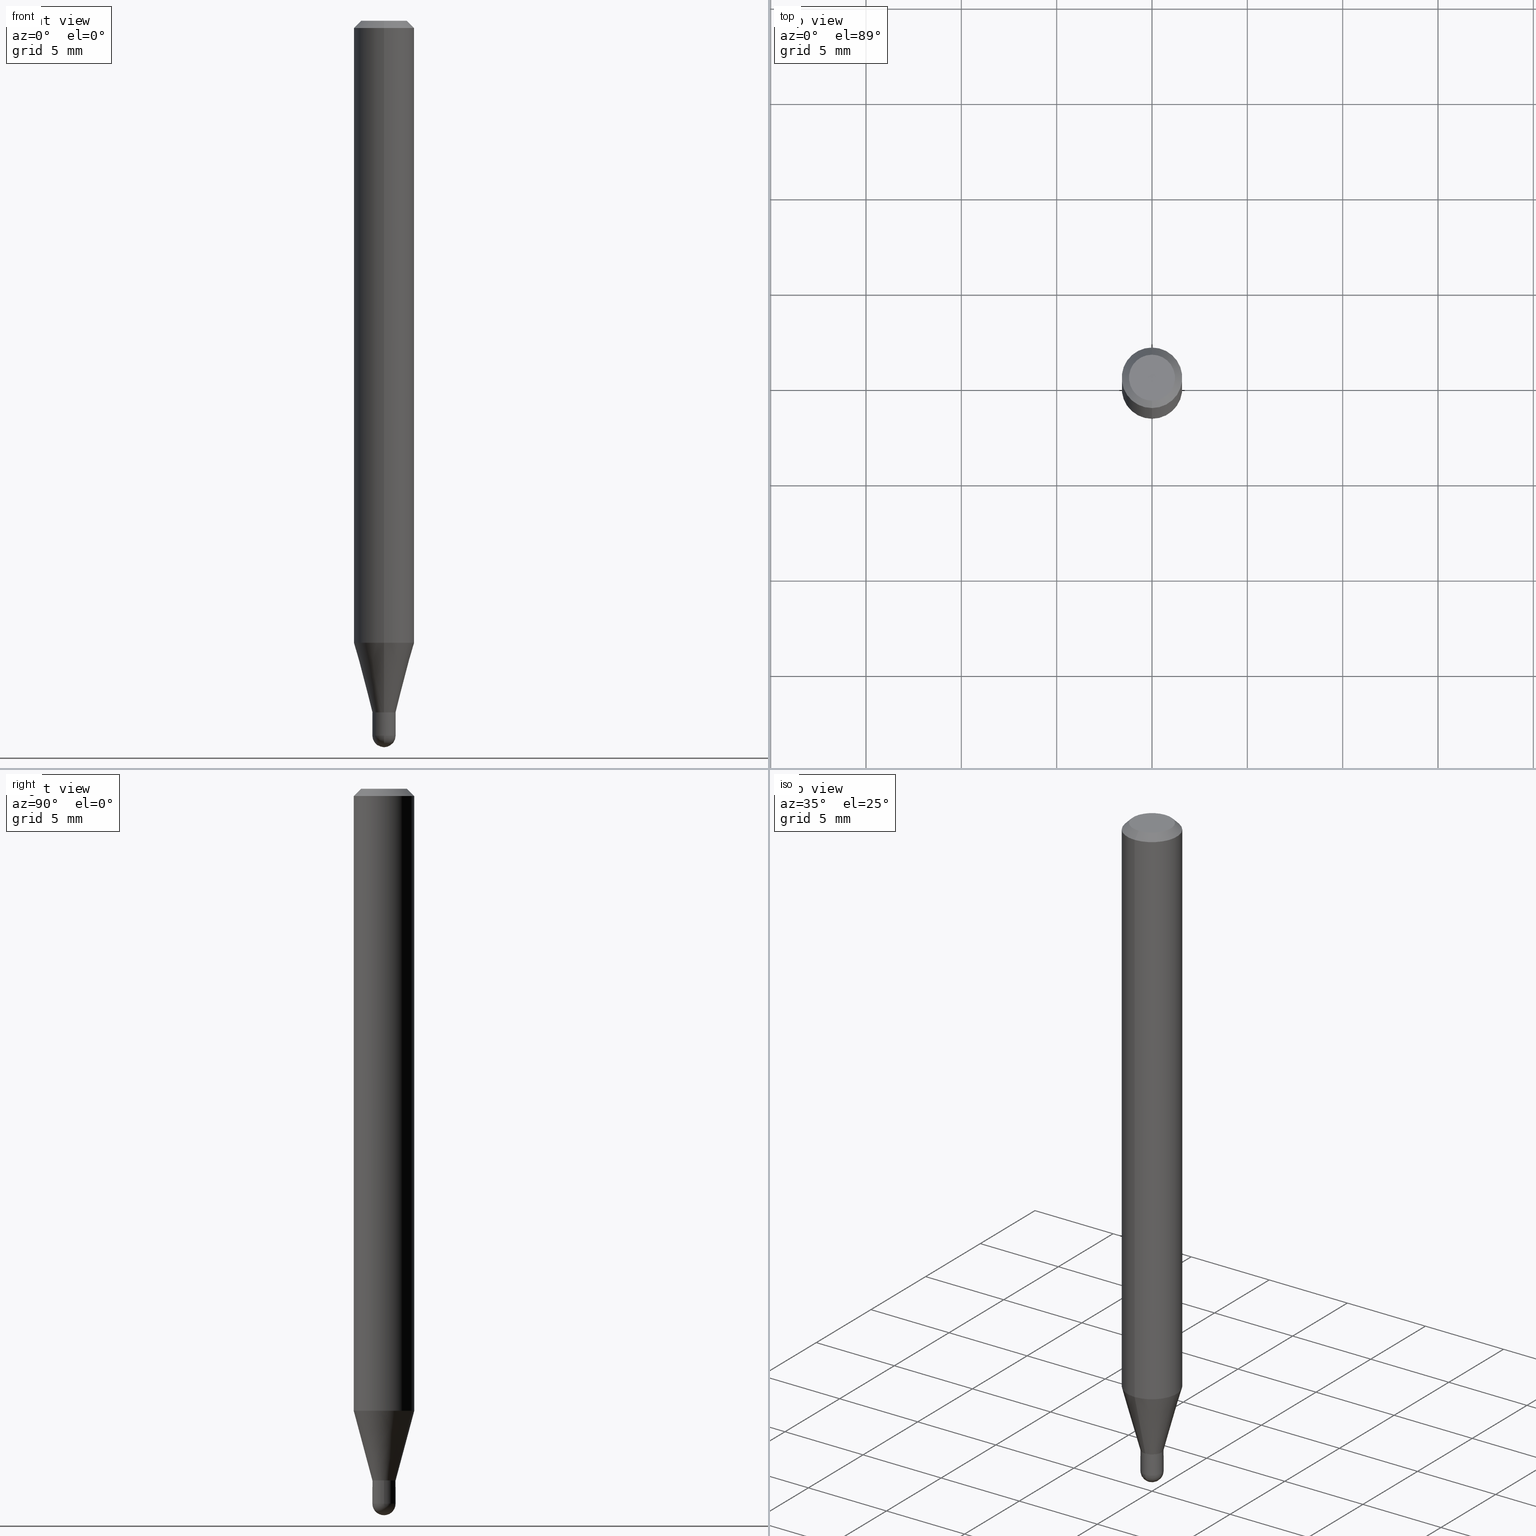
[diagram: canonical four-view strip — front | top / right | iso, engineering-drawing reading convention]
A machine part, canonical four-view strip (front | top / right | iso — engineering-drawing reading convention). The complete STEP part file that produces these views, byte-faithful:
ISO-10303-21;
HEADER;
FILE_DESCRIPTION (( 'STEP AP203' ),
    '1' );
FILE_NAME ('04360.STEP',
    '2024-03-08T18:52:19',
    ( '' ),
    ( '' ),
    'SwSTEP 2.0',
    'SolidWorks 2023',
    '' );
FILE_SCHEMA (( 'CONFIG_CONTROL_DESIGN' ));
ENDSEC;

DATA;
#1 = CARTESIAN_POINT ( 'NONE',  ( 3.490919734568844214E-29, -4.984070974782843525E-15, -1.427500000000000213 ) ) ;
#2 = CIRCLE ( 'NONE', #293, 0.06250000000000000000 ) ;
#3 = AXIS2_PLACEMENT_3D ( 'NONE', #206, #324, #477 ) ;
#4 = ORIENTED_EDGE ( 'NONE', *, *, #61, .T. ) ;
#5 = DIRECTION ( 'NONE',  ( -2.445477922640170503E-29, 3.491468283560659998E-15, 1.000000000000000000 ) ) ;
#6 = LINE ( 'NONE', #13, #456 ) ;
#7 = EDGE_CURVE ( 'NONE', #127, #265, #6, .T. ) ;
#8 = CARTESIAN_POINT ( 'NONE',  ( -4.364351673553916201E-16, -0.06250000000000000000, 2.182167677225412499E-16 ) ) ;
#9 = EDGE_LOOP ( 'NONE', ( #442, #286, #478, #216 ) ) ;
#10 = PERSON_AND_ORGANIZATION ( #240, #394 ) ;
#11 = PLANE ( 'NONE',  #294 ) ;
#12 = AXIS2_PLACEMENT_3D ( 'NONE', #448, #250, #371 ) ;
#13 = CARTESIAN_POINT ( 'NONE',  ( 4.364351673553919652E-16, 0.06249999999999995143, -0.01500000000000028394 ) ) ;
#14 = AXIS2_PLACEMENT_3D ( 'NONE', #172, #183, #302 ) ;
#15 = VECTOR ( 'NONE', #5, 39.37007874015748143 ) ;
#16 =( CONVERSION_BASED_UNIT ( 'INCH', #370 ) LENGTH_UNIT ( ) NAMED_UNIT ( #268 ) );
#17 = DIRECTION ( 'NONE',  ( -2.445477922640170783E-29, 3.491468283560660393E-15, 1.000000000000000000 ) ) ;
#18 = ADVANCED_FACE ( 'NONE', ( #131 ), #245, .T. ) ;
#19 = LINE ( 'NONE', #289, #350 ) ;
#20 = DIRECTION ( 'NONE',  ( -2.445477922640170503E-29, 3.491468283560659998E-15, 1.000000000000000000 ) ) ;
#21 = AXIS2_PLACEMENT_3D ( 'NONE', #348, #72, #38 ) ;
#22 = CIRCLE ( 'NONE', #413, 0.02400000000000003866 ) ;
#23 = SECURITY_CLASSIFICATION_LEVEL ( 'unclassified' ) ;
#24 = MANIFOLD_SOLID_BREP ( 'Body-Move/Copy2[1]', #119 ) ;
#25 = CARTESIAN_POINT ( 'NONE',  ( 1.669775429036583772E-16, 0.02349999999999500752, -1.428000000000000380 ) ) ;
#26 = EDGE_CURVE ( 'NONE', #481, #485, #19, .T. ) ;
#27 = DIRECTION ( 'NONE',  ( -6.982962677686265922E-15, -1.000000000000000000, 0.000000000000000000 ) ) ;
#28 = DIRECTION ( 'NONE',  ( -6.982962677686265922E-15, -1.000000000000000000, 3.483106191921935554E-15 ) ) ;
#29 = AXIS2_PLACEMENT_3D ( 'NONE', #258, #414, #55 ) ;
#30 = AXIS2_PLACEMENT_3D ( 'NONE', #472, #396, #195 ) ;
#31 = DIRECTION ( 'NONE',  ( -2.445477922640170783E-29, 3.491468283560660393E-15, 1.000000000000000000 ) ) ;
#32 = PLANE ( 'NONE',  #89 ) ;
#33 = ORIENTED_EDGE ( 'NONE', *, *, #86, .F. ) ;
#34 = CARTESIAN_POINT ( 'NONE',  ( -1.675911042644368064E-16, -0.02400000000000517691, -1.428000000000000158 ) ) ;
#35 = VERTEX_POINT ( 'NONE', #179 ) ;
#36 = AXIS2_PLACEMENT_3D ( 'NONE', #80, #353, #269 ) ;
#37 = CC_DESIGN_APPROVAL ( #424, ( #331 ) ) ;
#38 = DIRECTION ( 'NONE',  ( -6.982962677686265922E-15, -1.000000000000000000, 0.000000000000000000 ) ) ;
#39 = EDGE_LOOP ( 'NONE', ( #247, #83, #193, #200, #92 ) ) ;
#40 = ADVANCED_FACE ( 'NONE', ( #334 ), #128, .T. ) ;
#41 = FACE_OUTER_BOUND ( 'NONE', #397, .T. ) ;
#42 = ORIENTED_EDGE ( 'NONE', *, *, #399, .T. ) ;
#43 = CARTESIAN_POINT ( 'NONE',  ( 1.705302565824602125E-16, 0.02399999999999486572, -1.475999999999999979 ) ) ;
#44 = ORIENTED_EDGE ( 'NONE', *, *, #266, .T. ) ;
#45 = APPLICATION_PROTOCOL_DEFINITION ( 'international standard', 'config_control_design', 1994, #87 ) ;
#46 = CARTESIAN_POINT ( 'NONE',  ( 1.705302565824602865E-16, 0.02399999999999520572, -1.428000000000000158 ) ) ;
#47 = CARTESIAN_POINT ( 'NONE',  ( 0.000000000000000000, 0.000000000000000000, 0.000000000000000000 ) ) ;
#48 = VERTEX_POINT ( 'NONE', #252 ) ;
#49 = LINE ( 'NONE', #8, #15 ) ;
#50 = CARTESIAN_POINT ( 'NONE',  ( 3.609511957929261635E-29, -5.153426456132482850E-15, -1.475999999999999979 ) ) ;
#51 = EDGE_CURVE ( 'NONE', #235, #113, #155, .T. ) ;
#52 = FACE_OUTER_BOUND ( 'NONE', #474, .T. ) ;
#53 = DIRECTION ( 'NONE',  ( -2.445477922640170503E-29, 3.491468283560659998E-15, 1.000000000000000000 ) ) ;
#54 = CONICAL_SURFACE ( 'NONE', #301, 0.02349999999999999312, 0.7853981633969318032 ) ;
#55 = DIRECTION ( 'NONE',  ( -6.982962677686265922E-15, -1.000000000000000000, 4.370956789862821150E-15 ) ) ;
#56 = CYLINDRICAL_SURFACE ( 'NONE', #121, 0.02399999999999991723 ) ;
#57 = UNCERTAINTY_MEASURE_WITH_UNIT (LENGTH_MEASURE( 1.000000000000000082E-05 ), #16, 'distance_accuracy_value', 'NONE');
#58 = APPROVAL_DATE_TIME ( #187, #404 ) ;
#59 = DIRECTION ( 'NONE',  ( -2.445468806185136597E-29, 3.491481338843145583E-15, 1.000000000000000000 ) ) ;
#60 = VECTOR ( 'NONE', #462, 39.37007874015748143 ) ;
#61 = EDGE_CURVE ( 'NONE', #127, #406, #411, .T. ) ;
#62 = SHAPE_DEFINITION_REPRESENTATION ( #383, #85 ) ;
#63 = DIRECTION ( 'NONE',  ( 1.000000000000000000, -6.982962677686250144E-15, 0.000000000000000000 ) ) ;
#64 = PERSON_AND_ORGANIZATION_ROLE ( 'design_supplier' ) ;
#65 = CARTESIAN_POINT ( 'NONE',  ( -1.675911042644344398E-16, -0.02400000000000517691, -1.475999999999999979 ) ) ;
#66 = ADVANCED_FACE ( 'NONE', ( #215 ), #292, .T. ) ;
#67 = CARTESIAN_POINT ( 'NONE',  ( 4.440892098500625669E-16, 0.06250000000000000000, -2.182167677225412499E-16 ) ) ;
#68 = EDGE_LOOP ( 'NONE', ( #270, #476, #489, #33 ) ) ;
#69 = VECTOR ( 'NONE', #149, 39.37007874015748143 ) ;
#70 = LOCAL_TIME ( 13, 52, 19.00000000000000000, #504 ) ;
#71 = CYLINDRICAL_SURFACE ( 'NONE', #122, 0.06250000000000000000 ) ;
#72 = DIRECTION ( 'NONE',  ( -2.445477922640170783E-29, 3.491468283560660393E-15, 1.000000000000000000 ) ) ;
#73 = ORIENTED_EDGE ( 'NONE', *, *, #452, .T. ) ;
#74 = SPHERICAL_SURFACE ( 'NONE', #36, 0.02400000000000003866 ) ;
#75 = ORIENTED_EDGE ( 'NONE', *, *, #391, .F. ) ;
#76 = EDGE_CURVE ( 'NONE', #403, #443, #189, .T. ) ;
#77 = APPROVAL_DATE_TIME ( #322, #424 ) ;
#78 = AXIS2_PLACEMENT_3D ( 'NONE', #191, #379, #27 ) ;
#79 = AXIS2_PLACEMENT_3D ( 'NONE', #130, #211, #362 ) ;
#80 = CARTESIAN_POINT ( 'NONE',  ( 3.607459558835231439E-29, -5.156365608450436393E-15, -1.475999999999999979 ) ) ;
#81 = ORIENTED_EDGE ( 'NONE', *, *, #262, .F. ) ;
#82 = CARTESIAN_POINT ( 'NONE',  ( 3.609511957929261635E-29, -5.153426456132482850E-15, -1.475999999999999979 ) ) ;
#83 = ORIENTED_EDGE ( 'NONE', *, *, #185, .T. ) ;
#84 = APPLICATION_PROTOCOL_DEFINITION ( 'international standard', 'config_control_design', 1994, #228 ) ;
#85 = ADVANCED_BREP_SHAPE_REPRESENTATION ( '04360', ( #24, #364, #505 ), #310 ) ;
#86 = EDGE_CURVE ( 'NONE', #265, #317, #318, .T. ) ;
#87 = APPLICATION_CONTEXT ( 'configuration controlled 3d designs of mechanical parts and assemblies' ) ;
#88 = ORIENTED_EDGE ( 'NONE', *, *, #381, .T. ) ;
#89 = AXIS2_PLACEMENT_3D ( 'NONE', #232, #238, #465 ) ;
#90 = DIRECTION ( 'NONE',  ( -2.445477922640170783E-29, 3.491468283560660393E-15, 1.000000000000000000 ) ) ;
#91 = CIRCLE ( 'NONE', #79, 0.02400000000000019132 ) ;
#92 = ORIENTED_EDGE ( 'NONE', *, *, #299, .F. ) ;
#93 = DIRECTION ( 'NONE',  ( -1.000000000000000000, 6.982962677686265922E-15, -4.876176775795935793E-29 ) ) ;
#94 = CARTESIAN_POINT ( 'NONE',  ( 3.668216883960272272E-31, -5.237202425341013244E-17, -0.01500000000000006710 ) ) ;
#95 = EDGE_CURVE ( 'NONE', #48, #443, #100, .T. ) ;
#96 = LINE ( 'NONE', #132, #420 ) ;
#97 = ORIENTED_EDGE ( 'NONE', *, *, #480, .F. ) ;
#98 = AXIS2_PLACEMENT_3D ( 'NONE', #137, #295, #453 ) ;
#99 = DIRECTION ( 'NONE',  ( -2.445468806185136597E-29, 3.491481338843145583E-15, 1.000000000000000000 ) ) ;
#100 = LINE ( 'NONE', #46, #229 ) ;
#101 = CARTESIAN_POINT ( 'NONE',  ( 1.687538997430571255E-16, 0.02349999999999500752, -1.428000000000000380 ) ) ;
#102 = ADVANCED_FACE ( 'NONE', ( #363 ), #213, .T. ) ;
#103 = COORDINATED_UNIVERSAL_TIME_OFFSET ( 5, 0, .BEHIND. ) ;
#104 = CYLINDRICAL_SURFACE ( 'NONE', #230, 0.02400000000000000397 ) ;
#105 = DIRECTION ( 'NONE',  ( -6.982962677686266711E-15, -1.000000000000000000, 3.491468283560660393E-15 ) ) ;
#106 = APPROVAL_STATUS ( 'not_yet_approved' ) ;
#107 = ADVANCED_FACE ( 'NONE', ( #110 ), #236, .T. ) ;
#108 = LINE ( 'NONE', #67, #384 ) ;
#109 = APPROVAL_DATE_TIME ( #461, #251 ) ;
#110 = FACE_OUTER_BOUND ( 'NONE', #325, .T. ) ;
#111 = AXIS2_PLACEMENT_3D ( 'NONE', #114, #231, #153 ) ;
#112 = DIRECTION ( 'NONE',  ( -2.445468806185136597E-29, 3.491481338843145583E-15, 1.000000000000000000 ) ) ;
#113 = VERTEX_POINT ( 'NONE', #454 ) ;
#114 = CARTESIAN_POINT ( 'NONE',  ( 3.492129455232375114E-29, -4.985835351868012196E-15, -1.428000000000000158 ) ) ;
#115 = ORIENTED_EDGE ( 'NONE', *, *, #147, .T. ) ;
#116 = PERSON_AND_ORGANIZATION ( #240, #394 ) ;
#117 = DIRECTION ( 'NONE',  ( -6.982962677686265133E-15, -1.000000000000000000, 0.000000000000000000 ) ) ;
#118 = ORIENTED_EDGE ( 'NONE', *, *, #76, .T. ) ;
#119 = CLOSED_SHELL ( 'NONE', ( #176, #291, #440, #194, #66 ) ) ;
#120 = CALENDAR_DATE ( 2024, 8, 3 ) ;
#121 = AXIS2_PLACEMENT_3D ( 'NONE', #217, #145, #105 ) ;
#122 = AXIS2_PLACEMENT_3D ( 'NONE', #387, #90, #288 ) ;
#123 = CARTESIAN_POINT ( 'NONE',  ( -4.364351673553604601E-16, -0.06250000000000449640, -1.284316043908603877 ) ) ;
#124 = ORIENTED_EDGE ( 'NONE', *, *, #225, .F. ) ;
#125 = EDGE_CURVE ( 'NONE', #317, #265, #2, .T. ) ;
#126 = ORIENTED_EDGE ( 'NONE', *, *, #86, .T. ) ;
#127 = VERTEX_POINT ( 'NONE', #458 ) ;
#128 = CONICAL_SURFACE ( 'NONE', #12, 0.06250000000000000000, 0.7853981633974483900 ) ;
#129 = CIRCLE ( 'NONE', #419, 0.02400000000000003866 ) ;
#130 = CARTESIAN_POINT ( 'NONE',  ( 3.492142473530164178E-29, -4.985816708924623265E-15, -1.428000000000000158 ) ) ;
#131 = FACE_OUTER_BOUND ( 'NONE', #9, .T. ) ;
#132 = CARTESIAN_POINT ( 'NONE',  ( 1.705302565824234319E-16, 0.02399999999999991723, -8.379523880545556110E-17 ) ) ;
#133 = ORIENTED_EDGE ( 'NONE', *, *, #95, .T. ) ;
#134 = EDGE_CURVE ( 'NONE', #154, #35, #227, .T. ) ;
#135 = DIRECTION ( 'NONE',  ( -2.445477922640170503E-29, 3.491468283560659998E-15, 1.000000000000000000 ) ) ;
#136 = DIRECTION ( 'NONE',  ( 2.445477922640170783E-29, -3.491468283560660393E-15, -1.000000000000000000 ) ) ;
#137 = CARTESIAN_POINT ( 'NONE',  ( 3.668216883960272272E-31, -5.237202425341013244E-17, -0.01500000000000006710 ) ) ;
#138 = VECTOR ( 'NONE', #475, 39.37007874015748143 ) ;
#139 = CC_DESIGN_APPROVAL ( #404, ( #457 ) ) ;
#140 = EDGE_CURVE ( 'NONE', #359, #235, #129, .T. ) ;
#141 = CARTESIAN_POINT ( 'NONE',  ( 3.668216883960272272E-31, -5.237202425341013244E-17, -0.01500000000000006710 ) ) ;
#142 = EDGE_LOOP ( 'NONE', ( #233, #42, #431, #239 ) ) ;
#143 = COORDINATED_UNIVERSAL_TIME_OFFSET ( 5, 0, .BEHIND. ) ;
#144 = CARTESIAN_POINT ( 'NONE',  ( 3.316907271900976096E-16, 0.04749999999999999362, -1.985951705582884930E-16 ) ) ;
#145 = DIRECTION ( 'NONE',  ( -2.445477922640170783E-29, 3.491468283560660393E-15, 1.000000000000000000 ) ) ;
#146 = CONICAL_SURFACE ( 'NONE', #482, 0.02400000000000019132, 0.2617993877991580676 ) ;
#147 = EDGE_CURVE ( 'NONE', #443, #265, #108, .T. ) ;
#148 = LOCAL_TIME ( 13, 52, 19.00000000000000000, #493 ) ;
#149 = DIRECTION ( 'NONE',  ( -2.445468806185136877E-29, 3.491481338843145188E-15, 1.000000000000000000 ) ) ;
#150 = PRODUCT_RELATED_PRODUCT_CATEGORY ( 'detail', '', ( #429 ) ) ;
#151 = PERSON_AND_ORGANIZATION ( #240, #394 ) ;
#152 = DIRECTION ( 'NONE',  ( -6.982962677686265922E-15, -1.000000000000000000, 0.000000000000000000 ) ) ;
#153 = DIRECTION ( 'NONE',  ( 1.000000000000000000, -6.982962677686251722E-15, 0.000000000000000000 ) ) ;
#154 = VERTEX_POINT ( 'NONE', #101 ) ;
#155 = CIRCLE ( 'NONE', #360, 0.02400000000000000397 ) ;
#156 = VECTOR ( 'NONE', #373, 39.37007874015748143 ) ;
#157 = LOCAL_TIME ( 13, 52, 19.00000000000000000, #510 ) ;
#158 = CALENDAR_DATE ( 2024, 8, 3 ) ;
#159 = ADVANCED_FACE ( 'NONE', ( #307 ), #296, .F. ) ;
#160 = LINE ( 'NONE', #34, #138 ) ;
#161 = VERTEX_POINT ( 'NONE', #259 ) ;
#162 = DIRECTION ( 'NONE',  ( -2.445477922640170783E-29, 3.491468283560660393E-15, 1.000000000000000000 ) ) ;
#163 = ORIENTED_EDGE ( 'NONE', *, *, #399, .F. ) ;
#164 = FACE_OUTER_BOUND ( 'NONE', #142, .T. ) ;
#165 = ORIENTED_EDGE ( 'NONE', *, *, #381, .F. ) ;
#166 = EDGE_CURVE ( 'NONE', #406, #317, #298, .T. ) ;
#167 = AXIS2_PLACEMENT_3D ( 'NONE', #415, #377, #63 ) ;
#168 = DIRECTION ( 'NONE',  ( -2.445477922640170783E-29, 3.491468283560660393E-15, 1.000000000000000000 ) ) ;
#169 = EDGE_LOOP ( 'NONE', ( #88, #390, #97, #444, #507 ) ) ;
#170 = MECHANICAL_CONTEXT ( 'NONE', #87, 'mechanical' ) ;
#171 = CARTESIAN_POINT ( 'NONE',  ( -1.640996229255922955E-16, -0.02350000000000497871, -1.428000000000000380 ) ) ;
#172 = CARTESIAN_POINT ( 'NONE',  ( 3.492142473530164178E-29, -4.985816708924623265E-15, -1.428000000000000158 ) ) ;
#173 = DIRECTION ( 'NONE',  ( 0.000000000000000000, 0.000000000000000000, 1.000000000000000000 ) ) ;
#174 = ORIENTED_EDGE ( 'NONE', *, *, #262, .T. ) ;
#175 = CARTESIAN_POINT ( 'NONE',  ( 4.440892098500937762E-16, 0.06249999999999550360, -1.284316043908604321 ) ) ;
#176 = ADVANCED_FACE ( 'NONE', ( #455 ), #104, .T. ) ;
#177 = DIRECTION ( 'NONE',  ( 1.000000000000000000, -6.982962677686250144E-15, 0.000000000000000000 ) ) ;
#178 = ORIENTED_EDGE ( 'NONE', *, *, #452, .F. ) ;
#179 = CARTESIAN_POINT ( 'NONE',  ( 1.705302565824558245E-16, 0.02399999999999458122, -1.427500000000000213 ) ) ;
#180 = ADVANCED_FACE ( 'NONE', ( #261 ), #54, .T. ) ;
#181 = AXIS2_PLACEMENT_3D ( 'NONE', #144, #182, #342 ) ;
#182 = DIRECTION ( 'NONE',  ( 2.445477922640170503E-29, -3.491468283560659998E-15, -1.000000000000000000 ) ) ;
#183 = DIRECTION ( 'NONE',  ( -2.445477922640170783E-29, 3.491468283560660393E-15, 1.000000000000000000 ) ) ;
#184 = APPROVAL_ROLE ( '' ) ;
#185 = EDGE_CURVE ( 'NONE', #492, #235, #277, .T. ) ;
#186 = CARTESIAN_POINT ( 'NONE',  ( 3.492142473530164738E-29, -4.985816708924624054E-15, -1.428000000000000380 ) ) ;
#187 = DATE_AND_TIME ( #218, #222 ) ;
#188 = CARTESIAN_POINT ( 'NONE',  ( -0.02400000000000000397, 1.705302565824240728E-16, -1.180544421661177751E-30 ) ) ;
#189 = CIRCLE ( 'NONE', #29, 0.06250000000000000000 ) ;
#190 = PERSON_AND_ORGANIZATION_ROLE ( 'classification_officer' ) ;
#191 = CARTESIAN_POINT ( 'NONE',  ( 3.607459558835231439E-29, -5.156365608450436393E-15, -1.475999999999999979 ) ) ;
#192 = DIRECTION ( 'NONE',  ( 1.000000000000000000, -6.982962677686250144E-15, 0.000000000000000000 ) ) ;
#193 = ORIENTED_EDGE ( 'NONE', *, *, #51, .T. ) ;
#194 = ADVANCED_FACE ( 'NONE', ( #347 ), #500, .T. ) ;
#195 = DIRECTION ( 'NONE',  ( -6.982962677686266711E-15, -1.000000000000000000, 3.491468283560660787E-15 ) ) ;
#196 = ORIENTED_EDGE ( 'NONE', *, *, #134, .T. ) ;
#197 = AXIS2_PLACEMENT_3D ( 'NONE', #460, #112, #192 ) ;
#198 = CIRCLE ( 'NONE', #3, 0.02399999999999965009 ) ;
#199 = DIRECTION ( 'NONE',  ( -2.445477922640170783E-29, 3.491468283560660393E-15, 1.000000000000000000 ) ) ;
#200 = ORIENTED_EDGE ( 'NONE', *, *, #248, .T. ) ;
#201 = CARTESIAN_POINT ( 'NONE',  ( 3.492142473530164738E-29, -4.985816708924624054E-15, -1.428000000000000380 ) ) ;
#202 = ADVANCED_FACE ( 'NONE', ( #223 ), #56, .F. ) ;
#203 = ORIENTED_EDGE ( 'NONE', *, *, #134, .F. ) ;
#204 = CYLINDRICAL_SURFACE ( 'NONE', #278, 0.02399999999999991723 ) ;
#205 = ORIENTED_EDGE ( 'NONE', *, *, #185, .F. ) ;
#206 = CARTESIAN_POINT ( 'NONE',  ( 3.490919734568844214E-29, -4.984070974782843525E-15, -1.427500000000000213 ) ) ;
#207 = DIRECTION ( 'NONE',  ( 1.839019923739653958E-15, 0.2588190451025325078, 0.9659258262890650926 ) ) ;
#208 =( NAMED_UNIT ( * ) PLANE_ANGLE_UNIT ( ) SI_UNIT ( $, .RADIAN. ) );
#209 = ORIENTED_EDGE ( 'NONE', *, *, #323, .F. ) ;
#210 = CC_DESIGN_PERSON_AND_ORGANIZATION_ASSIGNMENT ( #116, #392, ( #429 ) ) ;
#211 = DIRECTION ( 'NONE',  ( -2.445477922640170783E-29, 3.491468283560660393E-15, 1.000000000000000000 ) ) ;
#212 = DIRECTION ( 'NONE',  ( -2.445468806185136597E-29, 3.491481338843145583E-15, 1.000000000000000000 ) ) ;
#213 = CONICAL_SURFACE ( 'NONE', #14, 0.02400000000000019132, 0.2617993877991580676 ) ;
#214 = CIRCLE ( 'NONE', #483, 0.02400000000000000050 ) ;
#215 = FACE_OUTER_BOUND ( 'NONE', #39, .T. ) ;
#216 = ORIENTED_EDGE ( 'NONE', *, *, #7, .F. ) ;
#217 = CARTESIAN_POINT ( 'NONE',  ( 0.000000000000000000, 0.000000000000000000, 0.000000000000000000 ) ) ;
#218 = CALENDAR_DATE ( 2024, 8, 3 ) ;
#219 = AXIS2_PLACEMENT_3D ( 'NONE', #94, #136, #368 ) ;
#220 = CIRCLE ( 'NONE', #328, 0.02399999999999965009 ) ;
#221 = DIRECTION ( 'NONE',  ( 1.000000000000000000, -6.982962677686266711E-15, 4.876176775795935232E-29 ) ) ;
#222 = LOCAL_TIME ( 13, 52, 19.00000000000000000, #143 ) ;
#223 = FACE_OUTER_BOUND ( 'NONE', #244, .T. ) ;
#224 = CALENDAR_DATE ( 2024, 8, 3 ) ;
#225 = EDGE_CURVE ( 'NONE', #443, #403, #319, .T. ) ;
#226 = LINE ( 'NONE', #188, #393 ) ;
#227 = LINE ( 'NONE', #25, #156 ) ;
#228 = APPLICATION_CONTEXT ( 'configuration controlled 3d designs of mechanical parts and assemblies' ) ;
#229 = VECTOR ( 'NONE', #207, 39.37007874015748143 ) ;
#230 = AXIS2_PLACEMENT_3D ( 'NONE', #417, #59, #221 ) ;
#231 = DIRECTION ( 'NONE',  ( -2.445468806185136597E-29, 3.491481338843145583E-15, 1.000000000000000000 ) ) ;
#232 = CARTESIAN_POINT ( 'NONE',  ( 3.492142473530164178E-29, -4.985816708924623265E-15, -1.428000000000000158 ) ) ;
#233 = ORIENTED_EDGE ( 'NONE', *, *, #140, .F. ) ;
#234 = DIRECTION ( 'NONE',  ( -2.445477922640170783E-29, 3.491468283560660393E-15, 1.000000000000000000 ) ) ;
#235 = VERTEX_POINT ( 'NONE', #65 ) ;
#236 = CONICAL_SURFACE ( 'NONE', #463, 0.02349999999999999312, 0.7853981633969318032 ) ;
#237 = EDGE_CURVE ( 'NONE', #492, #352, #226, .T. ) ;
#238 = DIRECTION ( 'NONE',  ( -2.445477922640170503E-29, 3.491468283560659998E-15, 1.000000000000000000 ) ) ;
#239 = ORIENTED_EDGE ( 'NONE', *, *, #51, .F. ) ;
#240 = PERSON ( 'UNSPECIFIED', 'UNSPECIFIED', 'UNSPECIFIED', ('UNSPECIFIED'), ('UNSPECIFIED'), ('UNSPECIFIED') ) ;
#241 = CC_DESIGN_PERSON_AND_ORGANIZATION_ASSIGNMENT ( #260, #190, ( #303 ) ) ;
#242 = DIRECTION ( 'NONE',  ( -6.982962677686265922E-15, -1.000000000000000000, 0.000000000000000000 ) ) ;
#243 = ORIENTED_EDGE ( 'NONE', *, *, #76, .F. ) ;
#244 = EDGE_LOOP ( 'NONE', ( #209, #512, #273, #321 ) ) ;
#245 = CONICAL_SURFACE ( 'NONE', #219, 0.06250000000000000000, 0.7853981633974483900 ) ;
#246 = DIRECTION ( 'NONE',  ( 1.000000000000000000, -6.982962677686251722E-15, 0.000000000000000000 ) ) ;
#247 = ORIENTED_EDGE ( 'NONE', *, *, #237, .F. ) ;
#248 = EDGE_CURVE ( 'NONE', #113, #498, #344, .T. ) ;
#249 = LINE ( 'NONE', #171, #464 ) ;
#250 = DIRECTION ( 'NONE',  ( 2.445477922640170783E-29, -3.491468283560660393E-15, -1.000000000000000000 ) ) ;
#251 = APPROVAL ( #380, 'UNSPECIFIED' ) ;
#252 = CARTESIAN_POINT ( 'NONE',  ( 3.073097332162772285E-16, 0.02399999999999520572, -1.428000000000000158 ) ) ;
#253 = DATE_TIME_ROLE ( 'creation_date' ) ;
#254 = AXIS2_PLACEMENT_3D ( 'NONE', #451, #99, #257 ) ;
#255 = CIRCLE ( 'NONE', #111, 0.02400000000000000050 ) ;
#256 = EDGE_CURVE ( 'NONE', #113, #395, #412, .T. ) ;
#257 = DIRECTION ( 'NONE',  ( 1.000000000000000000, -6.982962677686266711E-15, 4.876176775795935232E-29 ) ) ;
#258 = CARTESIAN_POINT ( 'NONE',  ( 3.140766531071055068E-29, -4.484148733374991041E-15, -1.284316043908604099 ) ) ;
#259 = CARTESIAN_POINT ( 'NONE',  ( -1.640996229255922955E-16, -0.02350000000000497871, -1.428000000000000380 ) ) ;
#260 = PERSON_AND_ORGANIZATION ( #240, #394 ) ;
#261 = FACE_OUTER_BOUND ( 'NONE', #327, .T. ) ;
#262 = EDGE_CURVE ( 'NONE', #161, #154, #490, .T. ) ;
#263 = DIRECTION ( 'NONE',  ( -2.445477922640170783E-29, 3.491468283560660393E-15, 1.000000000000000000 ) ) ;
#264 = DIRECTION ( 'NONE',  ( -2.445468806185136877E-29, 3.491481338843145188E-15, 1.000000000000000000 ) ) ;
#265 = VERTEX_POINT ( 'NONE', #502 ) ;
#266 = EDGE_CURVE ( 'NONE', #154, #161, #361, .T. ) ;
#267 = DIRECTION ( 'NONE',  ( -6.982962677686266711E-15, -1.000000000000000000, 3.491468283560660393E-15 ) ) ;
#268 = DIMENSIONAL_EXPONENTS ( 1.000000000000000000, 0.000000000000000000, 0.000000000000000000, 0.000000000000000000, 0.000000000000000000, 0.000000000000000000, 0.000000000000000000 ) ;
#269 = DIRECTION ( 'NONE',  ( -6.982962677686265922E-15, -1.000000000000000000, 0.000000000000000000 ) ) ;
#270 = ORIENTED_EDGE ( 'NONE', *, *, #147, .F. ) ;
#271 = DESIGN_CONTEXT ( 'detailed design', #228, 'design' ) ;
#272 = CARTESIAN_POINT ( 'NONE',  ( 0.000000000000000000, 0.000000000000000000, 0.000000000000000000 ) ) ;
#273 = ORIENTED_EDGE ( 'NONE', *, *, #391, .T. ) ;
#274 = APPROVAL_ROLE ( '' ) ;
#275 = DIRECTION ( 'NONE',  ( -2.445477922640170783E-29, 3.491468283560660393E-15, 1.000000000000000000 ) ) ;
#276 = EDGE_LOOP ( 'NONE', ( #4, #281 ) ) ;
#277 = CIRCLE ( 'NONE', #167, 0.02400000000000000397 ) ;
#278 = AXIS2_PLACEMENT_3D ( 'NONE', #358, #168, #267 ) ;
#279 = PERSON_AND_ORGANIZATION_ROLE ( 'creator' ) ;
#280 = CARTESIAN_POINT ( 'NONE',  ( -3.773273898774340269E-16, -0.04749999999999999362, 1.003438892908170875E-16 ) ) ;
#281 = ORIENTED_EDGE ( 'NONE', *, *, #346, .T. ) ;
#282 =( NAMED_UNIT ( * ) SI_UNIT ( $, .STERADIAN. ) SOLID_ANGLE_UNIT ( ) );
#283 = EDGE_LOOP ( 'NONE', ( #163, #509, #205, #165 ) ) ;
#284 = PERSON_AND_ORGANIZATION ( #240, #394 ) ;
#285 = ADVANCED_FACE ( 'NONE', ( #356 ), #146, .T. ) ;
#286 = ORIENTED_EDGE ( 'NONE', *, *, #166, .T. ) ;
#287 = AXIS2_PLACEMENT_3D ( 'NONE', #82, #508, #398 ) ;
#288 = DIRECTION ( 'NONE',  ( -6.982962677686265922E-15, -1.000000000000000000, 3.491468283560659998E-15 ) ) ;
#289 = CARTESIAN_POINT ( 'NONE',  ( -1.675911042644698153E-16, -0.02399999999999991723, 8.379523880545556110E-17 ) ) ;
#290 = ORIENTED_EDGE ( 'NONE', *, *, #501, .F. ) ;
#291 = ADVANCED_FACE ( 'NONE', ( #164 ), #74, .T. ) ;
#292 = CYLINDRICAL_SURFACE ( 'NONE', #254, 0.02400000000000000397 ) ;
#293 = AXIS2_PLACEMENT_3D ( 'NONE', #141, #491, #28 ) ;
#294 = AXIS2_PLACEMENT_3D ( 'NONE', #365, #447, #93 ) ;
#295 = DIRECTION ( 'NONE',  ( -2.445477922640170783E-29, 3.491468283560660393E-15, 1.000000000000000000 ) ) ;
#296 = PLANE ( 'NONE',  #181 ) ;
#297 = PERSON_AND_ORGANIZATION ( #240, #394 ) ;
#298 = LINE ( 'NONE', #335, #60 ) ;
#299 = EDGE_CURVE ( 'NONE', #352, #498, #255, .T. ) ;
#300 = ORIENTED_EDGE ( 'NONE', *, *, #488, .F. ) ;
#301 = AXIS2_PLACEMENT_3D ( 'NONE', #421, #31, #495 ) ;
#302 = DIRECTION ( 'NONE',  ( -6.982962677686265922E-15, -1.000000000000000000, 0.000000000000000000 ) ) ;
#303 = SECURITY_CLASSIFICATION ( '', '', #23 ) ;
#304 = CC_DESIGN_PERSON_AND_ORGANIZATION_ASSIGNMENT ( #284, #279, ( #331 ) ) ;
#305 = DIRECTION ( 'NONE',  ( -2.445477922640170783E-29, 3.491468283560660393E-15, 1.000000000000000000 ) ) ;
#306 = ADVANCED_FACE ( 'NONE', ( #308 ), #32, .F. ) ;
#307 = FACE_OUTER_BOUND ( 'NONE', #276, .T. ) ;
#308 = FACE_OUTER_BOUND ( 'NONE', #357, .T. ) ;
#309 = AXIS2_PLACEMENT_3D ( 'NONE', #201, #275, #242 ) ;
#310 =( GEOMETRIC_REPRESENTATION_CONTEXT ( 3 ) GLOBAL_UNCERTAINTY_ASSIGNED_CONTEXT ( ( #57 ) ) GLOBAL_UNIT_ASSIGNED_CONTEXT ( ( #16, #208, #282 ) ) REPRESENTATION_CONTEXT ( 'NONE', 'WORKASPACE' ) );
#311 = ORIENTED_EDGE ( 'NONE', *, *, #7, .T. ) ;
#312 = DIRECTION ( 'NONE',  ( -6.982962677686265922E-15, -1.000000000000000000, 0.000000000000000000 ) ) ;
#313 = ORIENTED_EDGE ( 'NONE', *, *, #337, .F. ) ;
#314 = DIRECTION ( 'NONE',  ( -6.982962677686265922E-15, -1.000000000000000000, 0.000000000000000000 ) ) ;
#315 = EDGE_LOOP ( 'NONE', ( #400, #349, #311, #126 ) ) ;
#316 = DIRECTION ( 'NONE',  ( 7.105427357600999492E-15, 1.000000000000000000, 0.000000000000000000 ) ) ;
#317 = VERTEX_POINT ( 'NONE', #430 ) ;
#318 = CIRCLE ( 'NONE', #98, 0.06250000000000000000 ) ;
#319 = CIRCLE ( 'NONE', #343, 0.06250000000000000000 ) ;
#320 = CARTESIAN_POINT ( 'NONE',  ( 3.492142473530164178E-29, -4.985816708924623265E-15, -1.428000000000000158 ) ) ;
#321 = ORIENTED_EDGE ( 'NONE', *, *, #26, .F. ) ;
#322 = DATE_AND_TIME ( #120, #157 ) ;
#323 = EDGE_CURVE ( 'NONE', #48, #481, #445, .T. ) ;
#324 = DIRECTION ( 'NONE',  ( -2.445477922640170783E-29, 3.491468283560660393E-15, 1.000000000000000000 ) ) ;
#325 = EDGE_LOOP ( 'NONE', ( #174, #196, #438, #178 ) ) ;
#326 = CARTESIAN_POINT ( 'NONE',  ( -1.675911042644368064E-16, -0.02400000000000517691, -1.428000000000000158 ) ) ;
#327 = EDGE_LOOP ( 'NONE', ( #203, #44, #73, #75 ) ) ;
#328 = AXIS2_PLACEMENT_3D ( 'NONE', #1, #162, #117 ) ;
#329 = CARTESIAN_POINT ( 'NONE',  ( 3.492129455232375114E-29, -4.985835351868012196E-15, -1.428000000000000158 ) ) ;
#330 = EDGE_LOOP ( 'NONE', ( #466, #133, #243, #313 ) ) ;
#331 = PRODUCT_DEFINITION ( 'UNKNOWN', '', #457, #271 ) ;
#332 = CARTESIAN_POINT ( 'NONE',  ( 1.601808928071407067E-45, -2.286941549097159367E-31, -6.550085417831425799E-17 ) ) ;
#333 = CC_DESIGN_PERSON_AND_ORGANIZATION_ASSIGNMENT ( #378, #64, ( #457 ) ) ;
#334 = FACE_OUTER_BOUND ( 'NONE', #315, .T. ) ;
#335 = CARTESIAN_POINT ( 'NONE',  ( -4.287811248607203282E-16, -0.06250000000000005551, -0.01499999999999984852 ) ) ;
#336 = ORIENTED_EDGE ( 'NONE', *, *, #299, .T. ) ;
#337 = EDGE_CURVE ( 'NONE', #481, #403, #160, .T. ) ;
#338 = CARTESIAN_POINT ( 'NONE',  ( 3.607459558835231439E-29, -5.156365608450436393E-15, -1.475999999999999979 ) ) ;
#339 = ORIENTED_EDGE ( 'NONE', *, *, #95, .F. ) ;
#340 = PERSON_AND_ORGANIZATION_ROLE ( 'creator' ) ;
#341 = CC_DESIGN_PERSON_AND_ORGANIZATION_ASSIGNMENT ( #151, #340, ( #457 ) ) ;
#342 = DIRECTION ( 'NONE',  ( 6.982962677686265922E-15, 1.000000000000000000, -3.491468283560659998E-15 ) ) ;
#343 = AXIS2_PLACEMENT_3D ( 'NONE', #382, #263, #423 ) ;
#344 = LINE ( 'NONE', #497, #69 ) ;
#345 = APPROVAL_PERSON_ORGANIZATION ( #297, #251, #184 ) ;
#346 = EDGE_CURVE ( 'NONE', #406, #127, #473, .T. ) ;
#347 = FACE_OUTER_BOUND ( 'NONE', #283, .T. ) ;
#348 = CARTESIAN_POINT ( 'NONE',  ( 3.492142473530164738E-29, -4.985816708924624054E-15, -1.428000000000000380 ) ) ;
#349 = ORIENTED_EDGE ( 'NONE', *, *, #61, .F. ) ;
#350 = VECTOR ( 'NONE', #53, 39.37007874015748143 ) ;
#351 = CARTESIAN_POINT ( 'NONE',  ( -0.02400000000000000050, -4.899100647417823327E-15, -1.428000000000000158 ) ) ;
#352 = VERTEX_POINT ( 'NONE', #351 ) ;
#353 = DIRECTION ( 'NONE',  ( 1.000000000000000000, -6.982962677686265922E-15, 4.883557194083112901E-29 ) ) ;
#354 = ORIENTED_EDGE ( 'NONE', *, *, #26, .T. ) ;
#355 = PERSON_AND_ORGANIZATION ( #240, #394 ) ;
#356 = FACE_OUTER_BOUND ( 'NONE', #503, .T. ) ;
#357 = EDGE_LOOP ( 'NONE', ( #81, #366 ) ) ;
#358 = CARTESIAN_POINT ( 'NONE',  ( 0.000000000000000000, 0.000000000000000000, 0.000000000000000000 ) ) ;
#359 = VERTEX_POINT ( 'NONE', #467 ) ;
#360 = AXIS2_PLACEMENT_3D ( 'NONE', #50, #212, #177 ) ;
#361 = CIRCLE ( 'NONE', #309, 0.02349999999999999312 ) ;
#362 = DIRECTION ( 'NONE',  ( -6.982962677686265922E-15, -1.000000000000000000, 0.000000000000000000 ) ) ;
#363 = FACE_OUTER_BOUND ( 'NONE', #330, .T. ) ;
#364 = MANIFOLD_SOLID_BREP ( 'Body-Move/Copy2[2]', #375 ) ;
#365 = CARTESIAN_POINT ( 'NONE',  ( 1.675911042645052894E-16, 0.02399999999999501490, -1.428000000000000158 ) ) ;
#366 = ORIENTED_EDGE ( 'NONE', *, *, #266, .F. ) ;
#367 = CARTESIAN_POINT ( 'NONE',  ( -1.675911042644336263E-16, -0.02400000000000471548, -1.427500000000000213 ) ) ;
#368 = DIRECTION ( 'NONE',  ( 6.982962677686265922E-15, 1.000000000000000000, -3.483106191921935554E-15 ) ) ;
#369 = APPROVAL_PERSON_ORGANIZATION ( #10, #404, #422 ) ;
#370 = LENGTH_MEASURE_WITH_UNIT ( LENGTH_MEASURE( 0.02539999999999999897 ), #449 );
#371 = DIRECTION ( 'NONE',  ( 6.982962677686265922E-15, 1.000000000000000000, -3.483106191921935554E-15 ) ) ;
#372 = ORIENTED_EDGE ( 'NONE', *, *, #496, .F. ) ;
#373 = DIRECTION ( 'NONE',  ( 5.024295867785467037E-15, 0.7071067811861847519, 0.7071067811869102826 ) ) ;
#374 = ADVANCED_FACE ( 'NONE', ( #41 ), #469, .T. ) ;
#375 = CLOSED_SHELL ( 'NONE', ( #202, #107, #18, #374, #102, #285, #416, #40, #159, #306, #180, #409 ) ) ;
#376 = APPROVAL_PERSON_ORGANIZATION ( #355, #424, #274 ) ;
#377 = DIRECTION ( 'NONE',  ( -2.445468806185136597E-29, 3.491481338843145583E-15, 1.000000000000000000 ) ) ;
#378 = PERSON_AND_ORGANIZATION ( #240, #394 ) ;
#379 = DIRECTION ( 'NONE',  ( 1.000000000000000000, -6.982962677686265922E-15, 4.883557194083112901E-29 ) ) ;
#380 = APPROVAL_STATUS ( 'not_yet_approved' ) ;
#381 = EDGE_CURVE ( 'NONE', #395, #492, #426, .T. ) ;
#382 = CARTESIAN_POINT ( 'NONE',  ( 3.140766531071055068E-29, -4.484148733374991041E-15, -1.284316043908604099 ) ) ;
#383 = PRODUCT_DEFINITION_SHAPE ( 'NONE', 'NONE',  #331 ) ;
#384 = VECTOR ( 'NONE', #20, 39.37007874015748143 ) ;
#385 = CC_DESIGN_DATE_AND_TIME_ASSIGNMENT ( #439, #253, ( #331 ) ) ;
#386 = CALENDAR_DATE ( 2024, 8, 3 ) ;
#387 = CARTESIAN_POINT ( 'NONE',  ( 0.000000000000000000, 0.000000000000000000, 0.000000000000000000 ) ) ;
#388 = EDGE_LOOP ( 'NONE', ( #290, #300, #354, #433 ) ) ;
#389 = DIRECTION ( 'NONE',  ( -2.445477922640170783E-29, 3.491468283560660393E-15, 1.000000000000000000 ) ) ;
#390 = ORIENTED_EDGE ( 'NONE', *, *, #237, .T. ) ;
#391 = EDGE_CURVE ( 'NONE', #35, #485, #220, .T. ) ;
#392 = PERSON_AND_ORGANIZATION_ROLE ( 'design_owner' ) ;
#393 = VECTOR ( 'NONE', #264, 39.37007874015748143 ) ;
#394 = ORGANIZATION ( 'UNSPECIFIED', 'UNSPECIFIED', '' ) ;
#395 = VERTEX_POINT ( 'NONE', #43 ) ;
#396 = DIRECTION ( 'NONE',  ( -2.445477922640170783E-29, 3.491468283560660393E-15, 1.000000000000000000 ) ) ;
#397 = EDGE_LOOP ( 'NONE', ( #118, #115, #468, #372 ) ) ;
#398 = DIRECTION ( 'NONE',  ( 1.000000000000000000, -6.982962677686250144E-15, 0.000000000000000000 ) ) ;
#399 = EDGE_CURVE ( 'NONE', #359, #395, #22, .T. ) ;
#400 = ORIENTED_EDGE ( 'NONE', *, *, #166, .F. ) ;
#401 = APPROVAL_STATUS ( 'not_yet_approved' ) ;
#402 = CARTESIAN_POINT ( 'NONE',  ( -0.02400000000000000397, -4.899100647417823327E-15, -1.475999999999999979 ) ) ;
#403 = VERTEX_POINT ( 'NONE', #123 ) ;
#404 = APPROVAL ( #106, 'UNSPECIFIED' ) ;
#405 = AXIS2_PLACEMENT_3D ( 'NONE', #272, #199, #432 ) ;
#406 = VERTEX_POINT ( 'NONE', #280 ) ;
#407 = DIRECTION ( 'NONE',  ( -4.937700262161997655E-15, -0.7071067811861798669, 0.7071067811869151676 ) ) ;
#408 = ORIENTED_EDGE ( 'NONE', *, *, #480, .T. ) ;
#409 = ADVANCED_FACE ( 'NONE', ( #441 ), #204, .F. ) ;
#410 = DIRECTION ( 'NONE',  ( -6.982962677686266711E-15, -1.000000000000000000, 3.491468283560660787E-15 ) ) ;
#411 = CIRCLE ( 'NONE', #418, 0.04749999999999999362 ) ;
#412 = CIRCLE ( 'NONE', #197, 0.02400000000000000397 ) ;
#413 = AXIS2_PLACEMENT_3D ( 'NONE', #435, #511, #316 ) ;
#414 = DIRECTION ( 'NONE',  ( -2.445477922640170783E-29, 3.491468283560660393E-15, 1.000000000000000000 ) ) ;
#415 = CARTESIAN_POINT ( 'NONE',  ( 3.609511957929261635E-29, -5.153426456132482850E-15, -1.475999999999999979 ) ) ;
#416 = ADVANCED_FACE ( 'NONE', ( #427 ), #71, .T. ) ;
#417 = CARTESIAN_POINT ( 'NONE',  ( 0.000000000000000000, 0.000000000000000000, 0.000000000000000000 ) ) ;
#418 = AXIS2_PLACEMENT_3D ( 'NONE', #332, #17, #410 ) ;
#419 = AXIS2_PLACEMENT_3D ( 'NONE', #338, #425, #494 ) ;
#420 = VECTOR ( 'NONE', #135, 39.37007874015748143 ) ;
#421 = CARTESIAN_POINT ( 'NONE',  ( 3.492142473530164738E-29, -4.985816708924624054E-15, -1.428000000000000380 ) ) ;
#422 = APPROVAL_ROLE ( '' ) ;
#423 = DIRECTION ( 'NONE',  ( -6.982962677686265922E-15, -1.000000000000000000, 4.370956789862821150E-15 ) ) ;
#424 = APPROVAL ( #401, 'UNSPECIFIED' ) ;
#425 = DIRECTION ( 'NONE',  ( -1.000000000000000000, 6.982962677686265922E-15, -4.883557194083112340E-29 ) ) ;
#426 = CIRCLE ( 'NONE', #287, 0.02400000000000000397 ) ;
#427 = FACE_OUTER_BOUND ( 'NONE', #68, .T. ) ;
#428 = LOCAL_TIME ( 13, 52, 19.00000000000000000, #103 ) ;
#429 = PRODUCT ( '04360', '04360', '', ( #170 ) ) ;
#430 = CARTESIAN_POINT ( 'NONE',  ( -4.364351673553912750E-16, -0.06250000000000005551, -0.01499999999999984852 ) ) ;
#431 = ORIENTED_EDGE ( 'NONE', *, *, #256, .F. ) ;
#432 = DIRECTION ( 'NONE',  ( -6.982962677686265922E-15, -1.000000000000000000, 3.491468283560659998E-15 ) ) ;
#433 = ORIENTED_EDGE ( 'NONE', *, *, #471, .T. ) ;
#434 = CC_DESIGN_DATE_AND_TIME_ASSIGNMENT ( #499, #459, ( #303 ) ) ;
#435 = CARTESIAN_POINT ( 'NONE',  ( 3.607459558835231439E-29, -5.156365608450436393E-15, -1.475999999999999979 ) ) ;
#436 = AXIS2_PLACEMENT_3D ( 'NONE', #506, #389, #314 ) ;
#437 = CC_DESIGN_SECURITY_CLASSIFICATION ( #303, ( #457 ) ) ;
#438 = ORIENTED_EDGE ( 'NONE', *, *, #471, .F. ) ;
#439 = DATE_AND_TIME ( #158, #70 ) ;
#440 = ADVANCED_FACE ( 'NONE', ( #52 ), #11, .F. ) ;
#441 = FACE_OUTER_BOUND ( 'NONE', #388, .T. ) ;
#442 = ORIENTED_EDGE ( 'NONE', *, *, #346, .F. ) ;
#443 = VERTEX_POINT ( 'NONE', #175 ) ;
#444 = ORIENTED_EDGE ( 'NONE', *, *, #248, .F. ) ;
#445 = CIRCLE ( 'NONE', #436, 0.02400000000000019132 ) ;
#446 = CC_DESIGN_APPROVAL ( #251, ( #303 ) ) ;
#447 = DIRECTION ( 'NONE',  ( 2.438088387897960049E-29, -3.491481338843145188E-15, -1.000000000000000000 ) ) ;
#448 = CARTESIAN_POINT ( 'NONE',  ( 3.668216883960272272E-31, -5.237202425341013244E-17, -0.01500000000000006710 ) ) ;
#449 =( LENGTH_UNIT ( ) NAMED_UNIT ( * ) SI_UNIT ( $, .METRE. ) );
#450 = ORIENTED_EDGE ( 'NONE', *, *, #323, .T. ) ;
#451 = CARTESIAN_POINT ( 'NONE',  ( 0.000000000000000000, 0.000000000000000000, 0.000000000000000000 ) ) ;
#452 = EDGE_CURVE ( 'NONE', #161, #485, #249, .T. ) ;
#453 = DIRECTION ( 'NONE',  ( -6.982962677686265922E-15, -1.000000000000000000, 3.483106191921935554E-15 ) ) ;
#454 = CARTESIAN_POINT ( 'NONE',  ( 0.02400000000000000397, -5.237222008264717388E-15, -1.475999999999999979 ) ) ;
#455 = FACE_OUTER_BOUND ( 'NONE', #169, .T. ) ;
#456 = VECTOR ( 'NONE', #487, 39.37007874015748143 ) ;
#457 = PRODUCT_DEFINITION_FORMATION_WITH_SPECIFIED_SOURCE ( 'ANY', '', #429, .NOT_KNOWN. ) ;
#458 = CARTESIAN_POINT ( 'NONE',  ( 3.840629472727447874E-16, 0.04749999999999999362, -2.313455976474456035E-16 ) ) ;
#459 = DATE_TIME_ROLE ( 'classification_date' ) ;
#460 = CARTESIAN_POINT ( 'NONE',  ( 3.609511957929261635E-29, -5.153426456132482850E-15, -1.475999999999999979 ) ) ;
#461 = DATE_AND_TIME ( #386, #428 ) ;
#462 = DIRECTION ( 'NONE',  ( -4.851104656540964275E-15, -0.7071067811865500152, -0.7071067811865450192 ) ) ;
#463 = AXIS2_PLACEMENT_3D ( 'NONE', #186, #305, #152 ) ;
#464 = VECTOR ( 'NONE', #407, 39.37007874015748143 ) ;
#465 = DIRECTION ( 'NONE',  ( -6.982962677686265922E-15, -1.000000000000000000, 3.491468283560659998E-15 ) ) ;
#466 = ORIENTED_EDGE ( 'NONE', *, *, #488, .T. ) ;
#467 = CARTESIAN_POINT ( 'NONE',  ( 3.665124610636659881E-29, -5.241630736741648491E-15, -1.500000000000000222 ) ) ;
#468 = ORIENTED_EDGE ( 'NONE', *, *, #125, .F. ) ;
#469 = CYLINDRICAL_SURFACE ( 'NONE', #405, 0.06250000000000000000 ) ;
#470 = ORIENTED_EDGE ( 'NONE', *, *, #337, .T. ) ;
#471 = EDGE_CURVE ( 'NONE', #485, #35, #198, .T. ) ;
#472 = CARTESIAN_POINT ( 'NONE',  ( 1.601808928071407067E-45, -2.286941549097159367E-31, -6.550085417831425799E-17 ) ) ;
#473 = CIRCLE ( 'NONE', #30, 0.04749999999999999362 ) ;
#474 = EDGE_LOOP ( 'NONE', ( #408, #336 ) ) ;
#475 = DIRECTION ( 'NONE',  ( -1.807323732225382993E-15, -0.2588190451025257355, 0.9659258262890669799 ) ) ;
#476 = ORIENTED_EDGE ( 'NONE', *, *, #225, .T. ) ;
#477 = DIRECTION ( 'NONE',  ( -6.982962677686265133E-15, -1.000000000000000000, 0.000000000000000000 ) ) ;
#478 = ORIENTED_EDGE ( 'NONE', *, *, #125, .T. ) ;
#479 = DIRECTION ( 'NONE',  ( 1.000000000000000000, 0.000000000000000000, 0.000000000000000000 ) ) ;
#480 = EDGE_CURVE ( 'NONE', #498, #352, #214, .T. ) ;
#481 = VERTEX_POINT ( 'NONE', #326 ) ;
#482 = AXIS2_PLACEMENT_3D ( 'NONE', #320, #234, #312 ) ;
#483 = AXIS2_PLACEMENT_3D ( 'NONE', #329, #484, #246 ) ;
#484 = DIRECTION ( 'NONE',  ( -2.445468806185136597E-29, 3.491481338843145583E-15, 1.000000000000000000 ) ) ;
#485 = VERTEX_POINT ( 'NONE', #367 ) ;
#486 = CARTESIAN_POINT ( 'NONE',  ( 0.02400000000000000050, -5.153426456132482850E-15, -1.428000000000000158 ) ) ;
#487 = DIRECTION ( 'NONE',  ( 4.937700262164548042E-15, 0.7071067811865451302, -0.7071067811865499042 ) ) ;
#488 = EDGE_CURVE ( 'NONE', #481, #48, #91, .T. ) ;
#489 = ORIENTED_EDGE ( 'NONE', *, *, #496, .T. ) ;
#490 = CIRCLE ( 'NONE', #21, 0.02349999999999999312 ) ;
#491 = DIRECTION ( 'NONE',  ( -2.445477922640170783E-29, 3.491468283560660393E-15, 1.000000000000000000 ) ) ;
#492 = VERTEX_POINT ( 'NONE', #402 ) ;
#493 = COORDINATED_UNIVERSAL_TIME_OFFSET ( 5, 0, .BEHIND. ) ;
#494 = DIRECTION ( 'NONE',  ( -6.982962677686265922E-15, -1.000000000000000000, 0.000000000000000000 ) ) ;
#495 = DIRECTION ( 'NONE',  ( -6.982962677686265922E-15, -1.000000000000000000, 0.000000000000000000 ) ) ;
#496 = EDGE_CURVE ( 'NONE', #403, #317, #49, .T. ) ;
#497 = CARTESIAN_POINT ( 'NONE',  ( 0.02400000000000000397, -1.675911042644704316E-16, 1.170282426191024667E-30 ) ) ;
#498 = VERTEX_POINT ( 'NONE', #486 ) ;
#499 = DATE_AND_TIME ( #224, #148 ) ;
#500 = SPHERICAL_SURFACE ( 'NONE', #78, 0.02400000000000003866 ) ;
#501 = EDGE_CURVE ( 'NONE', #48, #35, #96, .T. ) ;
#502 = CARTESIAN_POINT ( 'NONE',  ( 4.440892098500941706E-16, 0.06249999999999995143, -0.01500000000000028394 ) ) ;
#503 = EDGE_LOOP ( 'NONE', ( #339, #450, #470, #124 ) ) ;
#504 = COORDINATED_UNIVERSAL_TIME_OFFSET ( 5, 0, .BEHIND. ) ;
#505 = AXIS2_PLACEMENT_3D ( 'NONE', #47, #173, #479 ) ;
#506 = CARTESIAN_POINT ( 'NONE',  ( 3.492142473530164178E-29, -4.985816708924623265E-15, -1.428000000000000158 ) ) ;
#507 = ORIENTED_EDGE ( 'NONE', *, *, #256, .T. ) ;
#508 = DIRECTION ( 'NONE',  ( -2.445468806185136597E-29, 3.491481338843145583E-15, 1.000000000000000000 ) ) ;
#509 = ORIENTED_EDGE ( 'NONE', *, *, #140, .T. ) ;
#510 = COORDINATED_UNIVERSAL_TIME_OFFSET ( 5, 0, .BEHIND. ) ;
#511 = DIRECTION ( 'NONE',  ( 1.000000000000000000, -7.105427357601001070E-15, 4.926315508542082329E-29 ) ) ;
#512 = ORIENTED_EDGE ( 'NONE', *, *, #501, .T. ) ;
ENDSEC;
END-ISO-10303-21;
